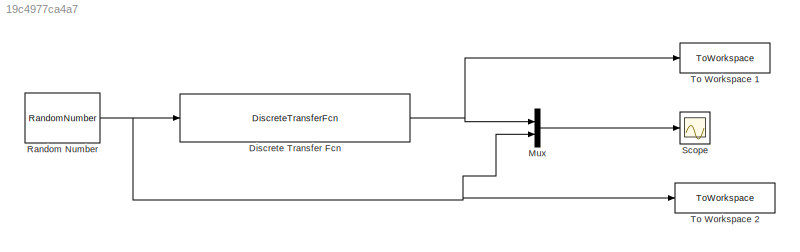
MODEL slx_19c4977ca4a7
KIND model
CONFIG AbsTol = auto
CONFIG EnableMultiTasking = off
CONFIG FixedStep = 0.0833
CONFIG MaxStep = auto
CONFIG MinStep = auto
CONFIG RelTol = 1e-3
CONFIG SampleTimeConstraint = Unconstrained
CONFIG SolverName = ode4
CONFIG StartTime = 0.0
CONFIG StopTime = 80
BLOCK [DiscreteTransferFcn] Discrete Transfer Fcn
  Denominator = [1 -2.5261 2.1154 -0.5877]
  InputPortMap = u0
  Numerator = [0 0.0002 0.0011 0.0003]
BLOCK [Mux] Mux
  DisplayOption = bar
  Inputs = 2
BLOCK [RandomNumber] Random Number
  SampleTime = 0.0833
BLOCK [Scope] Scope
  Floating = off
  NumInputPorts = 1
  ScopeSpecificationString = Simulink.scopes.TimeScopeBlockCfg('CurrentConfiguration', extmgr.ConfigurationSet(extmgr.Configuration('Core','General UI',true),extmgr.Configuration('Core','Source UI',true),extmgr.Configuration('Sources','WiredSimulink',true),extmgr.Configuration('Visuals','Time Domain',true,'SerializedDisplays',{struct('MinYLimReal','-3.63271','MaxYLimReal','3.96686','YLabelReal','','MinYLimMag','0.00000','MaxY...<+1387ch>
BLOCK [ToWorkspace] To Workspace 1
  FixptAsFi = on
  MaxDataPoints = inf
  SampleTime = -1
  SaveFormat = Timeseries
  VariableName = DiscreteOut
BLOCK [ToWorkspace] To Workspace 2
  FixptAsFi = on
  MaxDataPoints = inf
  SampleTime = -1
  SaveFormat = Timeseries
  VariableName = InputRandom
NET Discrete Transfer Fcn:1 -> Mux:1, To Workspace 1:1
LINE Mux:1 -> Scope:1
NET Random Number:1 -> Discrete Transfer Fcn:1, Mux:2, To Workspace 2:1
note: NET lines group one-source signal fan-out (src -> all destinations, sorted); 1:1 wires keep LINE
